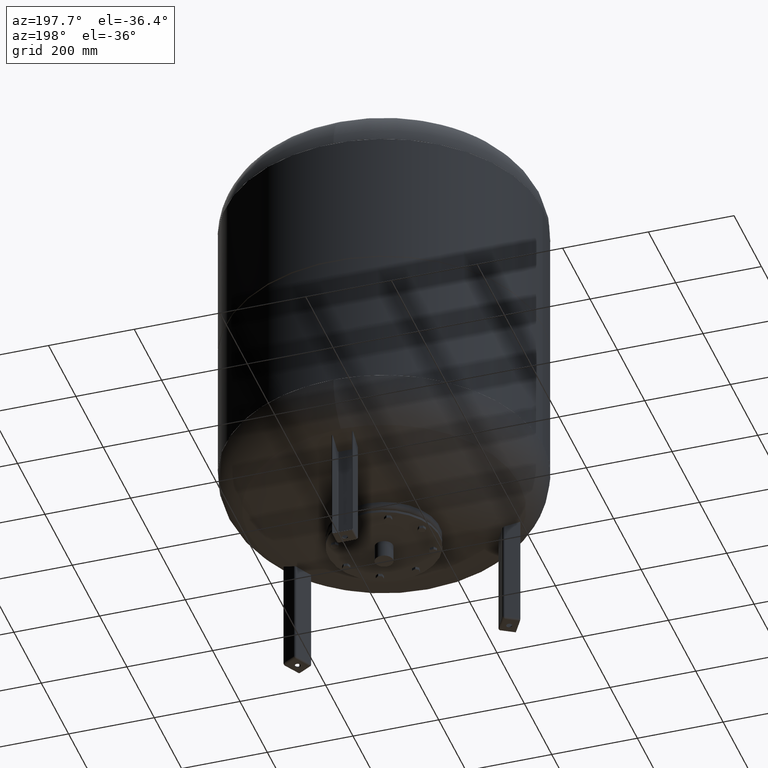
[diagram: clean part render]
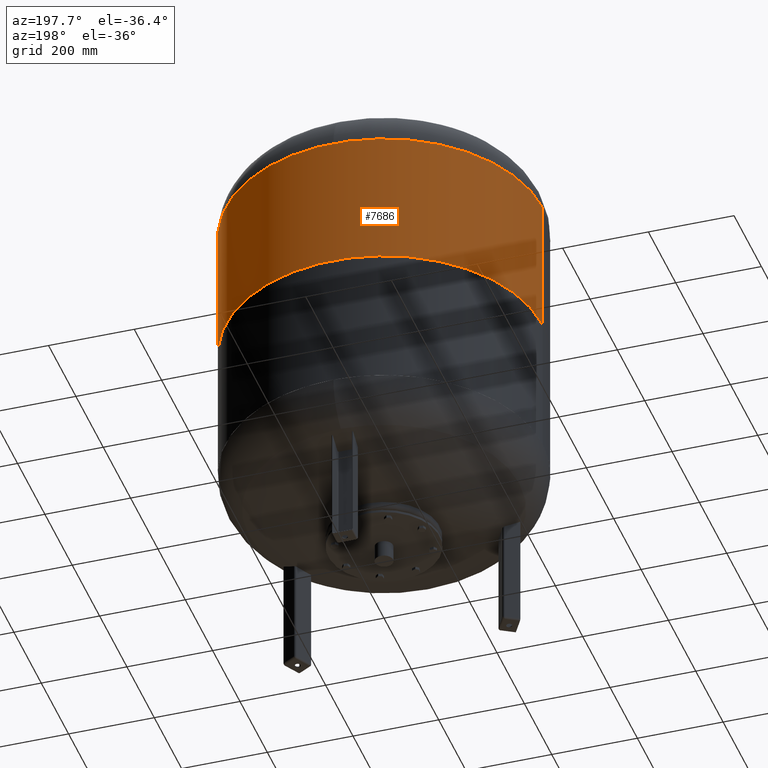
[diagram: same view with one face highlighted and labeled with its STEP entity id]
A machine part, auxiliary view. The second image highlights one B-rep face of the part: STEP entity #7686.
In plain terms, the highlighted cylindrical surface (partial cylindrical patch) has radius 370 mm, axis along (0, 0, 1).
Its self-contained STEP definition (entity closure, byte-faithful):
#7542=CARTESIAN_POINT('',(369.999999999999770,0.0,704.0));
#7543=VERTEX_POINT('',#7542);
#7552=CARTESIAN_POINT('',(-370.0,-4.531044E-014,704.0));
#7553=VERTEX_POINT('',#7552);
#7626=CARTESIAN_POINT('',(370.0,0.0,1027.0));
#7627=VERTEX_POINT('',#7626);
#7628=CARTESIAN_POINT('',(370.0,0.0,1027.0));
#7629=DIRECTION('',(0.0,0.0,-1.0));
#7630=VECTOR('',#7629,323.0);
#7631=LINE('',#7628,#7630);
#7632=EDGE_CURVE('',#7627,#7543,#7631,.T.);
#7634=CARTESIAN_POINT('',(-370.0,-4.531044E-014,1027.0));
#7635=VERTEX_POINT('',#7634);
#7643=CARTESIAN_POINT('',(-370.0,-4.531044E-014,1027.0));
#7644=DIRECTION('',(0.0,0.0,-1.0));
#7645=VECTOR('',#7644,323.0);
#7646=LINE('',#7643,#7645);
#7647=EDGE_CURVE('',#7635,#7553,#7646,.T.);
#7659=CARTESIAN_POINT('',(1.668796E-014,0.0,1027.0));
#7660=DIRECTION('',(0.0,0.0,1.0));
#7661=DIRECTION('',(1.0,0.0,0.0));
#7662=AXIS2_PLACEMENT_3D('',#7659,#7660,#7661);
#7663=CIRCLE('',#7662,370.0);
#7664=EDGE_CURVE('',#7627,#7635,#7663,.T.);
#7669=CARTESIAN_POINT('',(1.668796E-014,0.0,1029.500000000000000));
#7670=DIRECTION('',(0.0,0.0,1.0));
#7671=DIRECTION('',(1.0,0.0,0.0));
#7672=AXIS2_PLACEMENT_3D('',#7669,#7670,#7671);
#7673=CYLINDRICAL_SURFACE('',#7672,370.0);
#7674=ORIENTED_EDGE('',*,*,#7632,.T.);
#7675=CARTESIAN_POINT('',(1.535702E-016,0.0,704.0));
#7676=DIRECTION('',(0.0,0.0,1.0));
#7677=DIRECTION('',(1.0,0.0,0.0));
#7678=AXIS2_PLACEMENT_3D('',#7675,#7676,#7677);
#7679=CIRCLE('',#7678,369.999999999999770);
#7680=EDGE_CURVE('',#7543,#7553,#7679,.T.);
#7681=ORIENTED_EDGE('',*,*,#7680,.T.);
#7682=ORIENTED_EDGE('',*,*,#7647,.F.);
#7683=ORIENTED_EDGE('',*,*,#7664,.F.);
#7684=EDGE_LOOP('',(#7674,#7681,#7682,#7683));
#7685=FACE_OUTER_BOUND('',#7684,.T.);
#7686=ADVANCED_FACE('',(#7685),#7673,.T.);